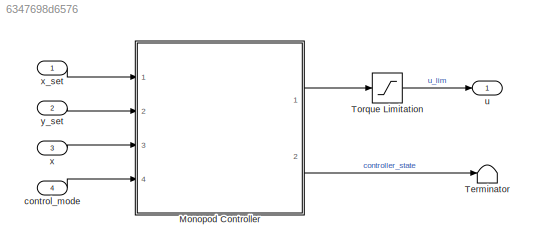
MODEL slx_6347698d6576
KIND model
CONFIG AbsTol = auto
CONFIG EnableMultiTasking = off
CONFIG FixedStep = 1/f_c
CONFIG MaxStep = auto
CONFIG MinStep = auto
CONFIG RelTol = 1e-3
CONFIG SampleTimeConstraint = Unconstrained
CONFIG SolverName = FixedStepDiscrete
CONFIG StartTime = 0.0
CONFIG StopTime = 10.0
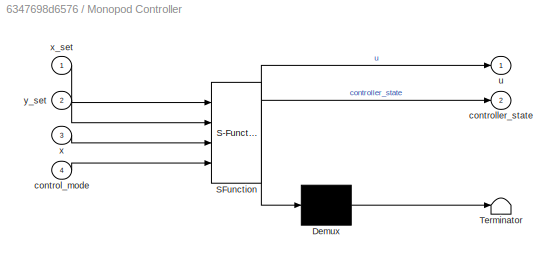
BLOCK [SubSystem] Monopod Controller
  ErrorFcn = Stateflow.Translate.translate
  PermitHierarchicalResolution = ExplicitOnly
  Ports = [4, 2]
  RequestExecContextInheritance = off
  SFBlockType = Chart
  TreatAsAtomicUnit = on
BLOCK [Demux] Monopod Controller/ Demux 
  Outputs = 1
  Ports = [1, 1]
BLOCK [S-Function] Monopod Controller/ SFunction 
  EnableBusSupport = on
  FunctionName = sf_sfun
  Parameters = I_1,I_2,I_body,[0;0],g,l_1,l_2,m_1,m_2,m_body
  PortCounts = [4 3]
  Ports = [4, 3]
  SFcnIsStateOwnerBlock = off
  SFunctionDeploymentMode = off
  Tag = Stateflow S-Function 2
BLOCK [Terminator] Monopod Controller/ Terminator 
BLOCK [Inport] Monopod Controller/control_mode
  Port = 4
BLOCK [Outport] Monopod Controller/controller_state
  Port = 2
BLOCK [Outport] Monopod Controller/u
BLOCK [Inport] Monopod Controller/x
  Port = 3
BLOCK [Inport] Monopod Controller/x_set
BLOCK [Inport] Monopod Controller/y_set
  Port = 2
BLOCK [Terminator] Terminator
BLOCK [Saturate] Torque Limitation
  LowerLimit = -trq_max
  UpperLimit = trq_max
BLOCK [Inport] control_mode
  Port = 4
BLOCK [Outport] u
BLOCK [Inport] x
  Port = 3
BLOCK [Inport] x_set
BLOCK [Inport] y_set
  Port = 2
LINE Monopod Controller:1 -> Torque Limitation:1
LINE Monopod Controller:2 -> Terminator:1
LINE Torque Limitation:1 -> u:1
LINE control_mode:1 -> Monopod Controller:4
LINE x:1 -> Monopod Controller:3
LINE x_set:1 -> Monopod Controller:1
LINE y_set:1 -> Monopod Controller:2
CHART Monopod Controller states=5 transitions=7
  STATE_LABEL 'Thrust_Phase\nentry:\n controller_state = 3\n lambda = get_lambda(x,u);\n thrust_profile = hopping_height_controller(y_set, y_apex)\n i = 1;\nduring:\n lambda = get_lambda(x,u);\n u = thrust2torque(thrust_profile(i));\n i = i+1;'
  STATE_LABEL 'Flight_Phase\nentry:\n controller_state = 0;\n y_foot = get_c(0,x);\n y_apex =  x(1);\nduring:\n y_foot = get_c(0,x);\n y_apex = max(x(1), y_apex);\n u = impedance_controller(x_set, x, 2);'
  STATE_LABEL 'Stance_Phase\nentry:\n controller_state = 2;\n lambda = get_lambda(x,u);\nduring:\n lambda = get_lambda(x,u);\n u = impedance_controller(x_set, x, 2);'
  STATE_LABEL 'u_new = thrust2torque(thrust)'
  STATE_LABEL 'SCRIPT:\nfunction u_new = thrust2torque(thrust)\n    F_p = [0; thrust];\n    J_pq = get_J_pq(x);\n    u_new = transpose(J_pq) * F_p;\nend'
  STATE_LABEL 'Impact_Phase\nentry:\n controller_state = 1;'
CHART  states=0 transitions=0
